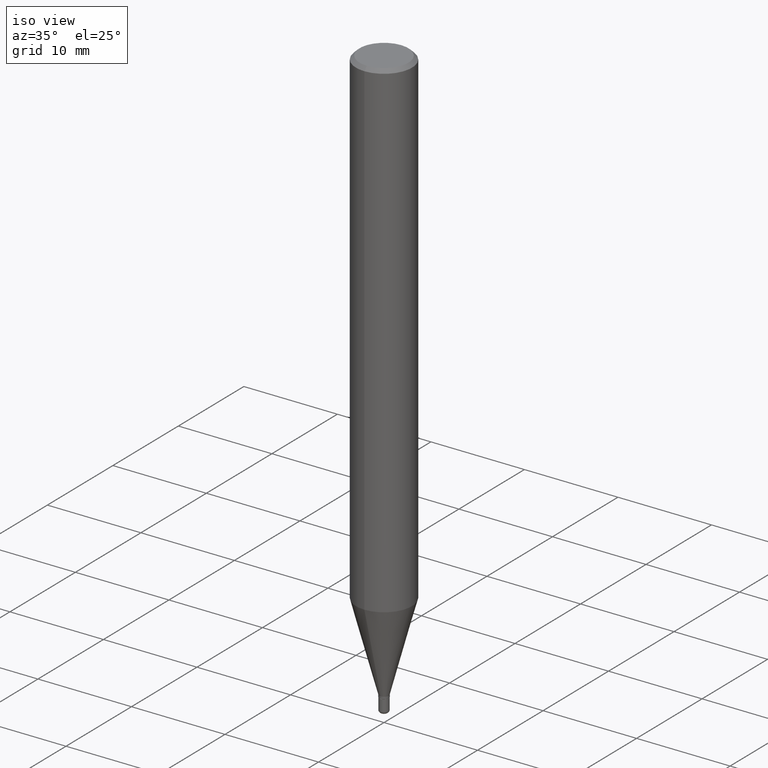
[diagram: clean part render]
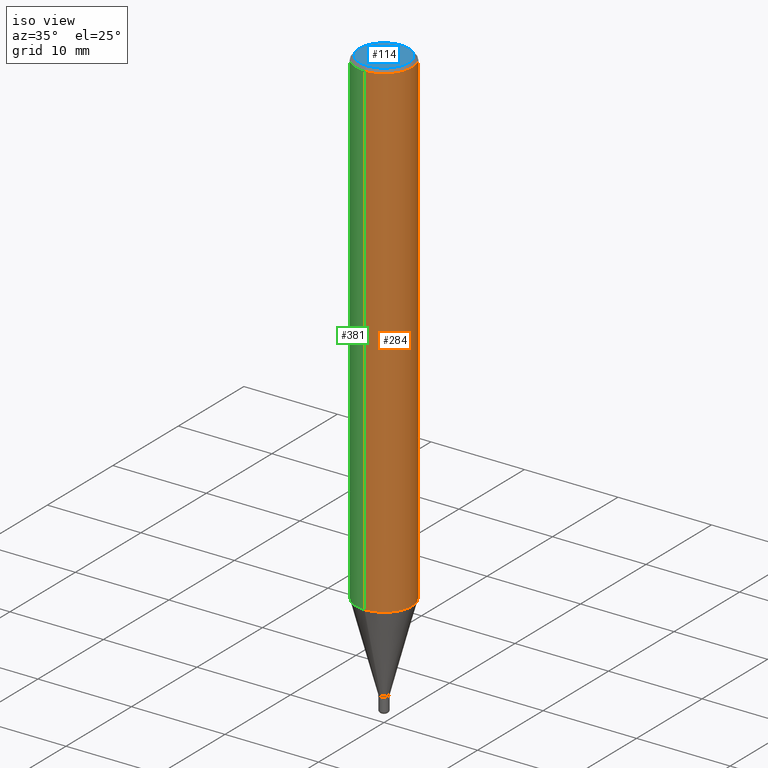
[diagram: same view with three faces highlighted in distinct colors, each labeled with its STEP entity id]
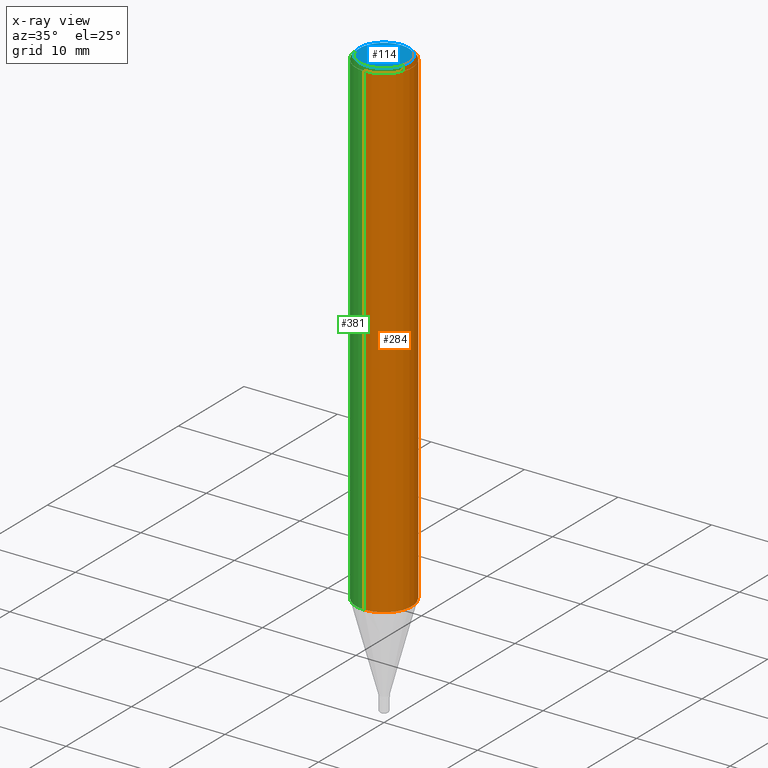
[diagram: x-ray of the same camera — body ghosted, the three highlighted faces saturated]
A machine part, iso view with three faces highlighted in distinct colors.
The next image is the same camera in x-ray (body ghosted, the three faces saturated) — at least one of them is partly hidden behind the body in this view.
Their STEP definitions:

[orange] entity #284 — the highlighted cylindrical surface (edge-blend (fillet) strip) has radius 2.9997 mm, axis along (-0, 0, 1).
#34 = EDGE_CURVE ( 'NONE', #515, #209, #385, .T. ) ;
#37 = DIRECTION ( 'NONE',  ( -2.445641850549916020E-29, 3.491233529463707792E-15, 1.000000000000000000 ) ) ;
#51 = CARTESIAN_POINT ( 'NONE',  ( -8.246878922347479668E-16, -0.1180999999999999966, 4.123146798296638619E-16 ) ) ;
#55 = CARTESIAN_POINT ( 'NONE',  ( 8.391509709326781971E-16, 0.1180999999999999966, -4.123146798296638619E-16 ) ) ;
#64 = ORIENTED_EDGE ( 'NONE', *, *, #443, .T. ) ;
#65 = ORIENTED_EDGE ( 'NONE', *, *, #229, .F. ) ;
#77 = CARTESIAN_POINT ( 'NONE',  ( 3.668462775824863590E-31, -5.236850294195546971E-17, -0.01499999999999995781 ) ) ;
#90 = CARTESIAN_POINT ( 'NONE',  ( 5.046988425594275791E-29, -7.204740632929544117E-15, -2.063666200535222650 ) ) ;
#93 = AXIS2_PLACEMENT_3D ( 'NONE', #77, #37, #121 ) ;
#106 = EDGE_CURVE ( 'NONE', #515, #143, #411, .T. ) ;
#121 = DIRECTION ( 'NONE',  ( -6.982962677686265922E-15, -1.000000000000000000, 3.487819265831411744E-15 ) ) ;
#140 = CARTESIAN_POINT ( 'NONE',  ( -8.246878922347475723E-16, -0.1181000000000000522, -0.01499999999999954495 ) ) ;
#143 = VERTEX_POINT ( 'NONE', #140 ) ;
#149 = ORIENTED_EDGE ( 'NONE', *, *, #34, .T. ) ;
#150 = CARTESIAN_POINT ( 'NONE',  ( -8.246878922346975783E-16, -0.1181000000000072270, -2.063666200535221762 ) ) ;
#158 = VECTOR ( 'NONE', #177, 39.37007874015748143 ) ;
#171 = CYLINDRICAL_SURFACE ( 'NONE', #491, 0.1180999999999999966 ) ;
#177 = DIRECTION ( 'NONE',  ( -2.445641850549916300E-29, 3.491233529463707398E-15, 1.000000000000000000 ) ) ;
#186 = ORIENTED_EDGE ( 'NONE', *, *, #106, .F. ) ;
#209 = VERTEX_POINT ( 'NONE', #369 ) ;
#229 = EDGE_CURVE ( 'NONE', #143, #513, #309, .T. ) ;
#255 = DIRECTION ( 'NONE',  ( -2.445641850549916020E-29, 3.491233529463707792E-15, 1.000000000000000000 ) ) ;
#257 = DIRECTION ( 'NONE',  ( -6.982962677686265922E-15, -1.000000000000000000, 4.626330217890369336E-15 ) ) ;
#284 = ADVANCED_FACE ( 'NONE', ( #455 ), #171, .T. ) ;
#309 = CIRCLE ( 'NONE', #93, 0.1180999999999999966 ) ;
#311 = LINE ( 'NONE', #55, #500 ) ;
#369 = CARTESIAN_POINT ( 'NONE',  ( 8.391509709327284870E-16, 0.1180999999999927941, -2.063666200535223094 ) ) ;
#380 = DIRECTION ( 'NONE',  ( -2.445641850549916020E-29, 3.491233529463707792E-15, 1.000000000000000000 ) ) ;
#382 = DIRECTION ( 'NONE',  ( -2.445641850549916300E-29, 3.491233529463707398E-15, 1.000000000000000000 ) ) ;
#385 = CIRCLE ( 'NONE', #487, 0.1180999999999999966 ) ;
#411 = LINE ( 'NONE', #51, #158 ) ;
#442 = EDGE_LOOP ( 'NONE', ( #149, #64, #65, #186 ) ) ;
#443 = EDGE_CURVE ( 'NONE', #209, #513, #311, .T. ) ;
#450 = CARTESIAN_POINT ( 'NONE',  ( 0.000000000000000000, 0.000000000000000000, 0.000000000000000000 ) ) ;
#455 = FACE_OUTER_BOUND ( 'NONE', #442, .T. ) ;
#484 = DIRECTION ( 'NONE',  ( -6.982962677686265922E-15, -1.000000000000000000, 3.491233529463707792E-15 ) ) ;
#487 = AXIS2_PLACEMENT_3D ( 'NONE', #90, #380, #257 ) ;
#491 = AXIS2_PLACEMENT_3D ( 'NONE', #450, #255, #484 ) ;
#499 = CARTESIAN_POINT ( 'NONE',  ( 8.391509709327288814E-16, 0.1180999999999999411, -0.01500000000000036894 ) ) ;
#500 = VECTOR ( 'NONE', #382, 39.37007874015748143 ) ;
#513 = VERTEX_POINT ( 'NONE', #499 ) ;
#515 = VERTEX_POINT ( 'NONE', #150 ) ;

[blue] entity #114 — the highlighted planar face has unit normal (0, -0, -1).
#14 = PLANE ( 'NONE',  #425 ) ;
#15 = CARTESIAN_POINT ( 'NONE',  ( 6.248406319806904300E-49, -8.919803872557076158E-35, -2.554914702004267745E-20 ) ) ;
#40 = VERTEX_POINT ( 'NONE', #184 ) ;
#52 = DIRECTION ( 'NONE',  ( -2.445641850549916020E-29, 3.491233529463707792E-15, 1.000000000000000000 ) ) ;
#70 = AXIS2_PLACEMENT_3D ( 'NONE', #224, #338, #383 ) ;
#97 = CIRCLE ( 'NONE', #70, 0.1031000000000000111 ) ;
#102 = EDGE_CURVE ( 'NONE', #117, #40, #97, .T. ) ;
#114 = ADVANCED_FACE ( 'NONE', ( #182 ), #14, .F. ) ;
#117 = VERTEX_POINT ( 'NONE', #462 ) ;
#132 = ORIENTED_EDGE ( 'NONE', *, *, #472, .T. ) ;
#182 = FACE_OUTER_BOUND ( 'NONE', #200, .T. ) ;
#184 = CARTESIAN_POINT ( 'NONE',  ( 7.723156721521011834E-16, 0.1031000000000000111, -3.599717260347282847E-16 ) ) ;
#187 = CARTESIAN_POINT ( 'NONE',  ( 7.199434520694541042E-16, 0.1031000000000000111, -3.599589514612182737E-16 ) ) ;
#195 = ORIENTED_EDGE ( 'NONE', *, *, #102, .T. ) ;
#200 = EDGE_LOOP ( 'NONE', ( #132, #195 ) ) ;
#224 = CARTESIAN_POINT ( 'NONE',  ( 6.248406319806904300E-49, -8.919803872557076158E-35, -2.554914702004267745E-20 ) ) ;
#283 = AXIS2_PLACEMENT_3D ( 'NONE', #15, #52, #459 ) ;
#303 = DIRECTION ( 'NONE',  ( 2.445641850549916020E-29, -3.491233529463707398E-15, -1.000000000000000000 ) ) ;
#338 = DIRECTION ( 'NONE',  ( -2.445641850549916020E-29, 3.491233529463707792E-15, 1.000000000000000000 ) ) ;
#383 = DIRECTION ( 'NONE',  ( -6.982962677686265922E-15, -1.000000000000000000, 3.491233529463707398E-15 ) ) ;
#425 = AXIS2_PLACEMENT_3D ( 'NONE', #187, #303, #458 ) ;
#458 = DIRECTION ( 'NONE',  ( 6.982962677686265922E-15, 1.000000000000000000, -3.491233529463707398E-15 ) ) ;
#459 = DIRECTION ( 'NONE',  ( -6.982962677686265922E-15, -1.000000000000000000, 3.491233529463707398E-15 ) ) ;
#462 = CARTESIAN_POINT ( 'NONE',  ( -7.587710785535310407E-16, -0.1031000000000000111, 3.599206277406882409E-16 ) ) ;
#472 = EDGE_CURVE ( 'NONE', #40, #117, #505, .T. ) ;
#505 = CIRCLE ( 'NONE', #283, 0.1031000000000000111 ) ;

[green] entity #381 — the highlighted cylindrical surface (edge-blend (fillet) strip) has radius 2.9997 mm, axis along (-0, 0, 1).
#38 = DIRECTION ( 'NONE',  ( -6.982962677686265922E-15, -1.000000000000000000, 3.491233529463707792E-15 ) ) ;
#51 = CARTESIAN_POINT ( 'NONE',  ( -8.246878922347479668E-16, -0.1180999999999999966, 4.123146798296638619E-16 ) ) ;
#55 = CARTESIAN_POINT ( 'NONE',  ( 8.391509709326781971E-16, 0.1180999999999999966, -4.123146798296638619E-16 ) ) ;
#78 = FACE_OUTER_BOUND ( 'NONE', #205, .T. ) ;
#82 = CIRCLE ( 'NONE', #466, 0.1180999999999999966 ) ;
#106 = EDGE_CURVE ( 'NONE', #515, #143, #411, .T. ) ;
#137 = DIRECTION ( 'NONE',  ( -2.445641850549916020E-29, 3.491233529463707792E-15, 1.000000000000000000 ) ) ;
#138 = DIRECTION ( 'NONE',  ( -2.445641850549916020E-29, 3.491233529463707792E-15, 1.000000000000000000 ) ) ;
#140 = CARTESIAN_POINT ( 'NONE',  ( -8.246878922347475723E-16, -0.1181000000000000522, -0.01499999999999954495 ) ) ;
#143 = VERTEX_POINT ( 'NONE', #140 ) ;
#150 = CARTESIAN_POINT ( 'NONE',  ( -8.246878922346975783E-16, -0.1181000000000072270, -2.063666200535221762 ) ) ;
#158 = VECTOR ( 'NONE', #177, 39.37007874015748143 ) ;
#177 = DIRECTION ( 'NONE',  ( -2.445641850549916300E-29, 3.491233529463707398E-15, 1.000000000000000000 ) ) ;
#205 = EDGE_LOOP ( 'NONE', ( #426, #319, #207, #417 ) ) ;
#207 = ORIENTED_EDGE ( 'NONE', *, *, #106, .T. ) ;
#209 = VERTEX_POINT ( 'NONE', #369 ) ;
#248 = CYLINDRICAL_SURFACE ( 'NONE', #448, 0.1180999999999999966 ) ;
#262 = EDGE_CURVE ( 'NONE', #209, #515, #82, .T. ) ;
#286 = DIRECTION ( 'NONE',  ( -2.445641850549916020E-29, 3.491233529463707792E-15, 1.000000000000000000 ) ) ;
#292 = DIRECTION ( 'NONE',  ( -6.982962677686265922E-15, -1.000000000000000000, 4.626330217890369336E-15 ) ) ;
#311 = LINE ( 'NONE', #55, #500 ) ;
#319 = ORIENTED_EDGE ( 'NONE', *, *, #262, .T. ) ;
#327 = CARTESIAN_POINT ( 'NONE',  ( 3.668462775824863590E-31, -5.236850294195546971E-17, -0.01499999999999995781 ) ) ;
#369 = CARTESIAN_POINT ( 'NONE',  ( 8.391509709327284870E-16, 0.1180999999999927941, -2.063666200535223094 ) ) ;
#376 = AXIS2_PLACEMENT_3D ( 'NONE', #327, #286, #444 ) ;
#381 = ADVANCED_FACE ( 'NONE', ( #78 ), #248, .T. ) ;
#382 = DIRECTION ( 'NONE',  ( -2.445641850549916300E-29, 3.491233529463707398E-15, 1.000000000000000000 ) ) ;
#411 = LINE ( 'NONE', #51, #158 ) ;
#417 = ORIENTED_EDGE ( 'NONE', *, *, #423, .F. ) ;
#423 = EDGE_CURVE ( 'NONE', #513, #143, #457, .T. ) ;
#426 = ORIENTED_EDGE ( 'NONE', *, *, #443, .F. ) ;
#443 = EDGE_CURVE ( 'NONE', #209, #513, #311, .T. ) ;
#444 = DIRECTION ( 'NONE',  ( -6.982962677686265922E-15, -1.000000000000000000, 3.487819265831411744E-15 ) ) ;
#448 = AXIS2_PLACEMENT_3D ( 'NONE', #493, #138, #38 ) ;
#457 = CIRCLE ( 'NONE', #376, 0.1180999999999999966 ) ;
#466 = AXIS2_PLACEMENT_3D ( 'NONE', #492, #137, #292 ) ;
#492 = CARTESIAN_POINT ( 'NONE',  ( 5.046988425594275791E-29, -7.204740632929544117E-15, -2.063666200535222650 ) ) ;
#493 = CARTESIAN_POINT ( 'NONE',  ( 0.000000000000000000, 0.000000000000000000, 0.000000000000000000 ) ) ;
#499 = CARTESIAN_POINT ( 'NONE',  ( 8.391509709327288814E-16, 0.1180999999999999411, -0.01500000000000036894 ) ) ;
#500 = VECTOR ( 'NONE', #382, 39.37007874015748143 ) ;
#513 = VERTEX_POINT ( 'NONE', #499 ) ;
#515 = VERTEX_POINT ( 'NONE', #150 ) ;